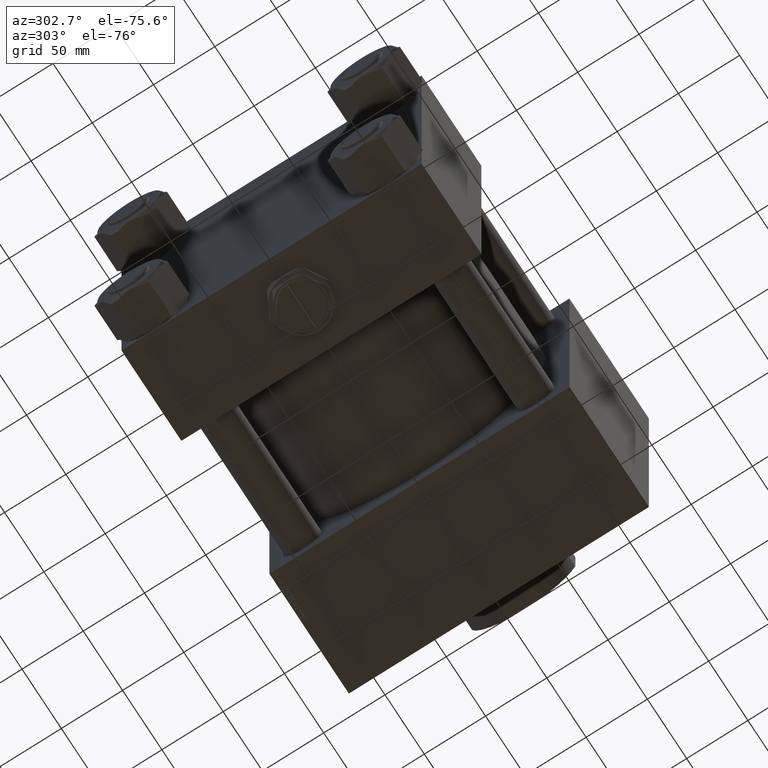
[diagram: clean part render]
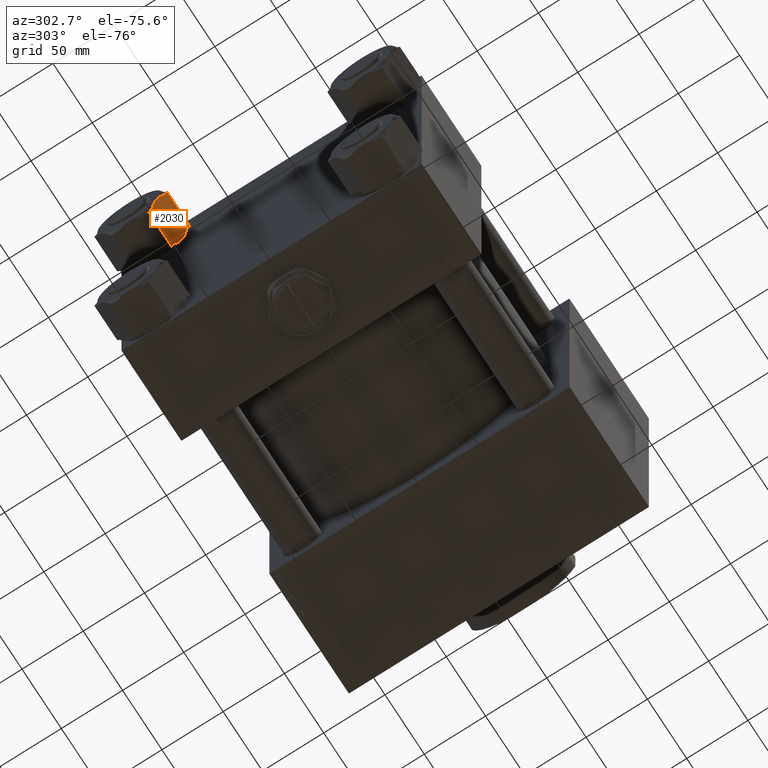
[diagram: same view with one face highlighted and labeled with its STEP entity id]
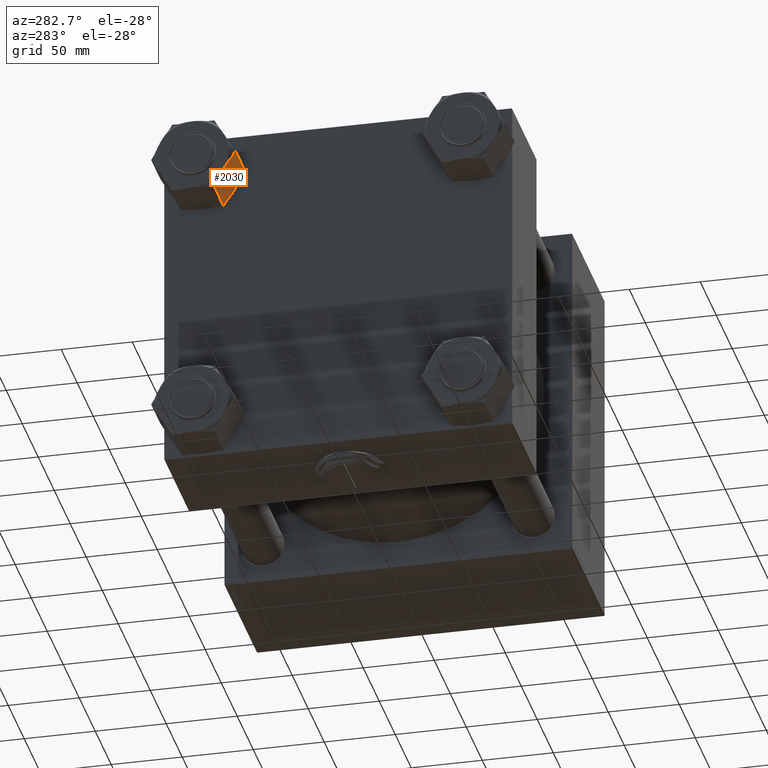
[diagram: same view with one face highlighted and labeled with its STEP entity id]
A machine part, auxiliary view. The second image highlights one B-rep face of the part: STEP entity #2030.
A second angle (auxiliary view) of the same face is appended — the face is thin or edge-on in the first view.
In plain terms, the highlighted planar face has unit normal (0, 0.866, 0.5).
Its self-contained STEP definition (entity closure, byte-faithful):
#187 = CARTESIAN_POINT ( 'NONE',  ( -6.099955639268593188, -25.65167246009509228, -0.7018505742978587980 ) ) ;
#996 = CARTESIAN_POINT ( 'NONE',  ( 3.520663271550317663, -25.65167246009508872, -32.81439241817539454 ) ) ;
#1143 = CARTESIAN_POINT ( 'NONE',  ( 0.000000000000000000, -25.65167246009507451, -33.00000000000000000 ) ) ;
#1227 = VECTOR ( 'NONE', #13831, 1000.000000000000000 ) ;
#1378 = VECTOR ( 'NONE', #15128, 1000.000000000000000 ) ;
#1458 = VERTEX_POINT ( 'NONE', #12905 ) ;
#1866 = CARTESIAN_POINT ( 'NONE',  ( 14.81000000000000405, -25.65167246009508872, -31.00000000000000000 ) ) ;
#2030 = ADVANCED_FACE ( 'NONE', ( #32449 ), #7484, .F. ) ;
#2155 = CARTESIAN_POINT ( 'NONE',  ( -14.81000000000000405, -25.65167246009508872, -2.000000000000001776 ) ) ;
#3415 = EDGE_CURVE ( 'NONE', #5441, #31845, #24951, .T. ) ;
#3908 = CARTESIAN_POINT ( 'NONE',  ( -9.489356881974103430, -25.65167246009508872, -1.696062228574767072 ) ) ;
#4597 = ORIENTED_EDGE ( 'NONE', *, *, #38338, .F. ) ;
#4978 = CARTESIAN_POINT ( 'NONE',  ( 8.647222686001216019, -25.65167246009508872, -31.58462314271101690 ) ) ;
#5441 = VERTEX_POINT ( 'NONE', #46507 ) ;
#5447 = VERTEX_POINT ( 'NONE', #2155 ) ;
#5563 = LINE ( 'NONE', #37978, #1378 ) ;
#5843 = EDGE_LOOP ( 'NONE', ( #34601, #52260, #16063, #24796, #52498, #26504, #17571, #6771, #7475, #4597 ) ) ;
#5910 = DIRECTION ( 'NONE',  ( -1.000000000000000000, 0.000000000000000000, 0.000000000000000000 ) ) ;
#6509 = EDGE_CURVE ( 'NONE', #1458, #5447, #11459, .T. ) ;
#6695 = LINE ( 'NONE', #43080, #11626 ) ;
#6771 = ORIENTED_EDGE ( 'NONE', *, *, #18875, .F. ) ;
#7332 = VECTOR ( 'NONE', #22155, 1000.000000000000000 ) ;
#7475 = ORIENTED_EDGE ( 'NONE', *, *, #34072, .F. ) ;
#7484 = PLANE ( 'NONE',  #16904 ) ;
#7513 = CARTESIAN_POINT ( 'NONE',  ( 10.32505156599137131, -25.65167246009508872, -2.000000000000000000 ) ) ;
#8146 = CARTESIAN_POINT ( 'NONE',  ( -6.953324275881605843, -25.65167246009509583, -0.9133292257629713751 ) ) ;
#8260 = CARTESIAN_POINT ( 'NONE',  ( -14.81000000000000405, -25.65167246009508872, -33.00000000000000000 ) ) ;
#8357 = CARTESIAN_POINT ( 'NONE',  ( 0.4430237275646230488, -25.65167246009508517, -1.238785685359413784E-17 ) ) ;
#8619 = CARTESIAN_POINT ( 'NONE',  ( 0.8893174470413388599, -25.65167246009508517, -0.01157092566016427147 ) ) ;
#9840 = CARTESIAN_POINT ( 'NONE',  ( 14.81000000000000405, -25.65167246009508872, -2.000000000000001776 ) ) ;
#9919 = LINE ( 'NONE', #42328, #7332 ) ;
#11459 = LINE ( 'NONE', #8260, #50306 ) ;
#11626 = VECTOR ( 'NONE', #15200, 1000.000000000000000 ) ;
#12002 = CARTESIAN_POINT ( 'NONE',  ( 14.81000000000000405, -25.65167246009508872, -33.00000000000000000 ) ) ;
#12141 = CARTESIAN_POINT ( 'NONE',  ( -8.647222686001246217, -25.65167246009509938, -1.415376857288990209 ) ) ;
#12347 = CARTESIAN_POINT ( 'NONE',  ( 4.407316998488239435, -25.65167246009508517, -0.3622406418063084943 ) ) ;
#12612 = CARTESIAN_POINT ( 'NONE',  ( 6.986203245587462973, -25.65167246009508872, -0.8809313092508314069 ) ) ;
#12905 = CARTESIAN_POINT ( 'NONE',  ( -14.81000000000000405, -25.65167246009508872, -31.00000000000000000 ) ) ;
#13212 = CARTESIAN_POINT ( 'NONE',  ( 6.099955639268577201, -25.65167246009509583, -32.29814942570213532 ) ) ;
#13454 = EDGE_CURVE ( 'NONE', #5447, #18857, #33506, .T. ) ;
#13831 = DIRECTION ( 'NONE',  ( 1.000000000000000000, 0.000000000000000000, 0.000000000000000000 ) ) ;
#15128 = DIRECTION ( 'NONE',  ( 1.000000000000000000, 0.000000000000000000, 0.000000000000000000 ) ) ;
#15200 = DIRECTION ( 'NONE',  ( -1.000000000000000000, 0.000000000000000000, 0.000000000000000000 ) ) ;
#15806 = CARTESIAN_POINT ( 'NONE',  ( -3.538636345949310869, -25.65167246009508872, -32.77183165578525603 ) ) ;
#15876 = VECTOR ( 'NONE', #5910, 1000.000000000000000 ) ;
#16063 = ORIENTED_EDGE ( 'NONE', *, *, #16817, .F. ) ;
#16393 = CARTESIAN_POINT ( 'NONE',  ( -3.520663271550329654, -25.65167246009508872, -0.1856075818245948028 ) ) ;
#16817 = EDGE_CURVE ( 'NONE', #31845, #42121, #5563, .T. ) ;
#16904 = AXIS2_PLACEMENT_3D ( 'NONE', #12002, #31931, #20237 ) ;
#17195 = CARTESIAN_POINT ( 'NONE',  ( 0.000000000000000000, -25.65167246009507451, -33.00000000000000000 ) ) ;
#17571 = ORIENTED_EDGE ( 'NONE', *, *, #6509, .F. ) ;
#18129 = B_SPLINE_CURVE_WITH_KNOTS ( 'NONE', 3,
 ( #20382, #36586, #3908, #12141, #44535, #8146, #187, #16393, #32591, #48805 ),
 .UNSPECIFIED., .F., .F.,
 ( 4, 2, 2, 2, 4 ),
 ( 0.04182442407301417697, 0.04314391849774561888, 0.04446341292247706078, 0.04710240177193995154, 0.05238037947086571916 ),
 .UNSPECIFIED. ) ;
#18266 = EDGE_CURVE ( 'NONE', #18857, #5441, #18129, .T. ) ;
#18857 = VERTEX_POINT ( 'NONE', #51084 ) ;
#18875 = EDGE_CURVE ( 'NONE', #22786, #1458, #18922, .T. ) ;
#18922 = LINE ( 'NONE', #42301, #15876 ) ;
#19791 = CARTESIAN_POINT ( 'NONE',  ( 0.000000000000000000, -25.65167246009507451, -33.00000000000000000 ) ) ;
#20055 = CARTESIAN_POINT ( 'NONE',  ( -10.32505156599134999, -25.65167246009508872, -31.00000000000000000 ) ) ;
#20237 = DIRECTION ( 'NONE',  ( 0.000000000000000000, -0.000000000000000000, 1.000000000000000000 ) ) ;
#20382 = CARTESIAN_POINT ( 'NONE',  ( -10.32505156599137131, -25.65167246009508872, -2.000000000000000000 ) ) ;
#21964 = CARTESIAN_POINT ( 'NONE',  ( 8.224817531128801207, -25.65167246009509228, -31.71672309237984066 ) ) ;
#22155 = DIRECTION ( 'NONE',  ( -0.000000000000000000, -0.000000000000000000, 1.000000000000000000 ) ) ;
#22786 = VERTEX_POINT ( 'NONE', #48797 ) ;
#23242 = CARTESIAN_POINT ( 'NONE',  ( -8.669316105214830870, -25.65167246009508517, -31.61824665530913592 ) ) ;
#23689 = DIRECTION ( 'NONE',  ( -0.000000000000000000, -0.000000000000000000, 1.000000000000000000 ) ) ;
#24572 = CARTESIAN_POINT ( 'NONE',  ( 2.220425330063954927, -25.65167246009509583, -0.09221160706300909893 ) ) ;
#24796 = ORIENTED_EDGE ( 'NONE', *, *, #3415, .F. ) ;
#24951 = B_SPLINE_CURVE_WITH_KNOTS ( 'NONE', 3,
 ( #25081, #8357, #8619, #41275, #24572, #40773, #12347, #12612, #40508, #45515 ),
 .UNSPECIFIED., .F., .F.,
 ( 4, 2, 2, 2, 4 ),
 ( 0.05238037947086571916, 0.05369742002259650371, 0.05501446057432728132, 0.05764854167778884347, 0.06291670388471196085 ),
 .UNSPECIFIED. ) ;
#25081 = CARTESIAN_POINT ( 'NONE',  ( 0.000000000000000000, -25.65167246009508872, 0.000000000000000000 ) ) ;
#25927 = CARTESIAN_POINT ( 'NONE',  ( 10.32505156599134999, -25.65167246009508872, -31.00000000000000000 ) ) ;
#26191 = CARTESIAN_POINT ( 'NONE',  ( 6.953324275881588967, -25.65167246009508872, -32.08667077423702096 ) ) ;
#26504 = ORIENTED_EDGE ( 'NONE', *, *, #13454, .F. ) ;
#29145 = CARTESIAN_POINT ( 'NONE',  ( 9.489356881974078561, -25.65167246009509228, -31.30393777142522538 ) ) ;
#31845 = VERTEX_POINT ( 'NONE', #7513 ) ;
#31931 = DIRECTION ( 'NONE',  ( 0.000000000000000000, 1.000000000000000000, 0.000000000000000000 ) ) ;
#32016 = CARTESIAN_POINT ( 'NONE',  ( -4.407316998488231441, -25.65167246009508517, -32.63775935819367646 ) ) ;
#32449 = FACE_OUTER_BOUND ( 'NONE', #5843, .T. ) ;
#32591 = CARTESIAN_POINT ( 'NONE',  ( -1.775396627771422375, -25.65167246009508517, 1.264902534566420936E-16 ) ) ;
#33506 = LINE ( 'NONE', #9840, #1227 ) ;
#34072 = EDGE_CURVE ( 'NONE', #51471, #22786, #51623, .T. ) ;
#34601 = ORIENTED_EDGE ( 'NONE', *, *, #42822, .F. ) ;
#35248 = VERTEX_POINT ( 'NONE', #1866 ) ;
#35742 = CARTESIAN_POINT ( 'NONE',  ( -0.8893174470413438559, -25.65167246009508517, -32.98842907433980542 ) ) ;
#36270 = CARTESIAN_POINT ( 'NONE',  ( -0.4430237275646249362, -25.65167246009508517, -32.99999999999999289 ) ) ;
#36586 = CARTESIAN_POINT ( 'NONE',  ( -9.909542374435218903, -25.65167246009508872, -1.844850114033721455 ) ) ;
#37395 = CARTESIAN_POINT ( 'NONE',  ( 9.909542374435188705, -25.65167246009509938, -31.15514988596628854 ) ) ;
#37978 = CARTESIAN_POINT ( 'NONE',  ( 14.81000000000000405, -25.65167246009508872, -2.000000000000001776 ) ) ;
#38338 = EDGE_CURVE ( 'NONE', #44872, #51471, #50693, .T. ) ;
#40508 = CARTESIAN_POINT ( 'NONE',  ( 8.669316105214852186, -25.65167246009508517, -1.381753344690851204 ) ) ;
#40773 = CARTESIAN_POINT ( 'NONE',  ( 3.538636345949316642, -25.65167246009508872, -0.2281683442147192098 ) ) ;
#41275 = CARTESIAN_POINT ( 'NONE',  ( 1.778491183643240214, -25.65167246009509228, -0.05774617287277815370 ) ) ;
#42121 = VERTEX_POINT ( 'NONE', #44391 ) ;
#42301 = CARTESIAN_POINT ( 'NONE',  ( 14.81000000000000405, -25.65167246009508872, -31.00000000000000000 ) ) ;
#42328 = CARTESIAN_POINT ( 'NONE',  ( 14.81000000000000405, -25.65167246009508872, -33.00000000000000000 ) ) ;
#42822 = EDGE_CURVE ( 'NONE', #35248, #44872, #6695, .T. ) ;
#43080 = CARTESIAN_POINT ( 'NONE',  ( 14.81000000000000405, -25.65167246009508872, -31.00000000000000000 ) ) ;
#43428 = CARTESIAN_POINT ( 'NONE',  ( -1.778491183643242879, -25.65167246009509228, -32.94225382712721029 ) ) ;
#44116 = CARTESIAN_POINT ( 'NONE',  ( 10.32505156599134999, -25.65167246009508872, -31.00000000000000000 ) ) ;
#44391 = CARTESIAN_POINT ( 'NONE',  ( 14.81000000000000405, -25.65167246009508872, -2.000000000000001776 ) ) ;
#44535 = CARTESIAN_POINT ( 'NONE',  ( -8.224817531128826076, -25.65167246009509228, -1.283276907620151563 ) ) ;
#44872 = VERTEX_POINT ( 'NONE', #44116 ) ;
#45467 = EDGE_CURVE ( 'NONE', #35248, #42121, #9919, .T. ) ;
#45515 = CARTESIAN_POINT ( 'NONE',  ( 10.32505156599137131, -25.65167246009508872, -2.000000000000000000 ) ) ;
#46507 = CARTESIAN_POINT ( 'NONE',  ( 0.000000000000000000, -25.65167246009508872, 0.000000000000000000 ) ) ;
#48797 = CARTESIAN_POINT ( 'NONE',  ( -10.32505156599134999, -25.65167246009508872, -31.00000000000000000 ) ) ;
#48805 = CARTESIAN_POINT ( 'NONE',  ( 0.000000000000000000, -25.65167246009508872, 0.000000000000000000 ) ) ;
#49873 = CARTESIAN_POINT ( 'NONE',  ( 1.775396627771416602, -25.65167246009509583, -32.99999999999999289 ) ) ;
#50306 = VECTOR ( 'NONE', #23689, 1000.000000000000000 ) ;
#50693 = B_SPLINE_CURVE_WITH_KNOTS ( 'NONE', 3,
 ( #25927, #37395, #29145, #4978, #21964, #26191, #13212, #996, #49873, #17195 ),
 .UNSPECIFIED., .F., .F.,
 ( 4, 2, 2, 2, 4 ),
 ( 0.04182442407301420473, 0.04314391849774563970, 0.04446341292247708160, 0.04710240177193995847, 0.05238037947086571916 ),
 .UNSPECIFIED. ) ;
#51084 = CARTESIAN_POINT ( 'NONE',  ( -10.32505156599137131, -25.65167246009508872, -2.000000000000000000 ) ) ;
#51471 = VERTEX_POINT ( 'NONE', #1143 ) ;
#51623 = B_SPLINE_CURVE_WITH_KNOTS ( 'NONE', 3,
 ( #19791, #36270, #35742, #43428, #52210, #15806, #32016, #51954, #23242, #20055 ),
 .UNSPECIFIED., .F., .F.,
 ( 4, 2, 2, 2, 4 ),
 ( 0.05238037947086571916, 0.05369742002259649677, 0.05501446057432727438, 0.05764854167778882960, 0.06291670388471193309 ),
 .UNSPECIFIED. ) ;
#51954 = CARTESIAN_POINT ( 'NONE',  ( -6.986203245587444322, -25.65167246009508872, -32.11906869074915960 ) ) ;
#52210 = CARTESIAN_POINT ( 'NONE',  ( -2.220425330063953151, -25.65167246009509583, -32.90778839293699320 ) ) ;
#52260 = ORIENTED_EDGE ( 'NONE', *, *, #45467, .T. ) ;
#52498 = ORIENTED_EDGE ( 'NONE', *, *, #18266, .F. ) ;